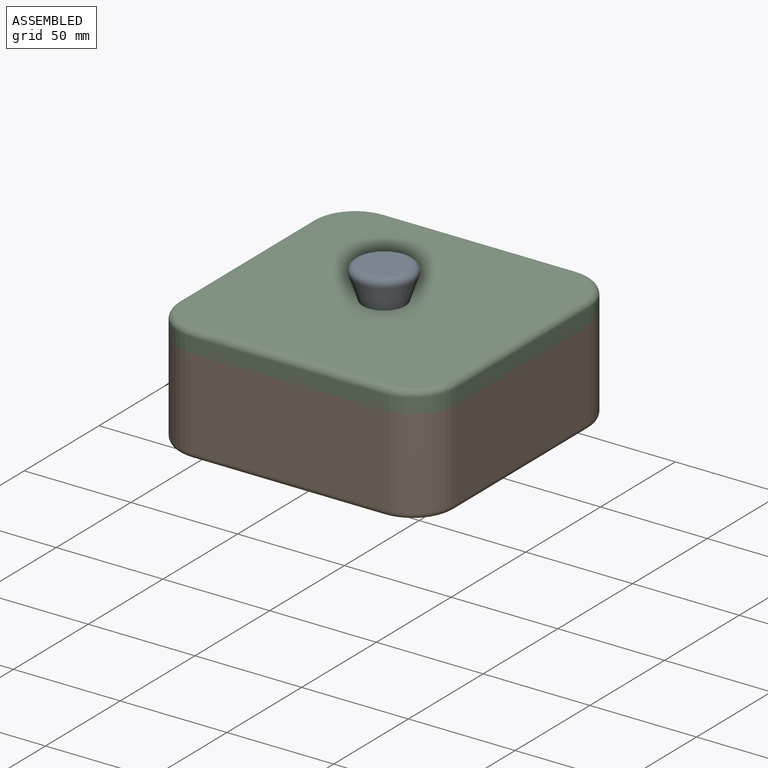
[diagram: assembled view]
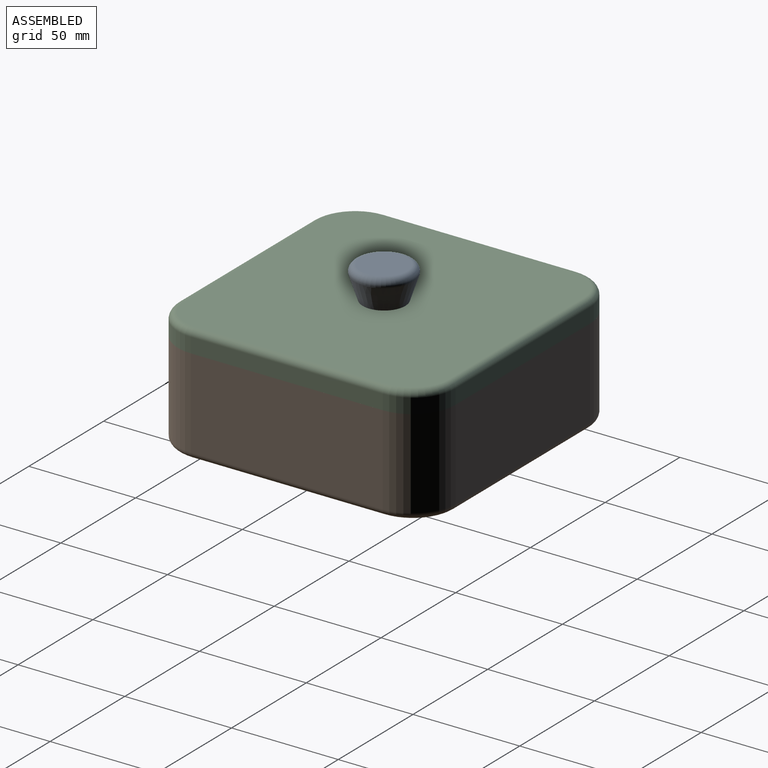
[diagram: assembled view, second angle]
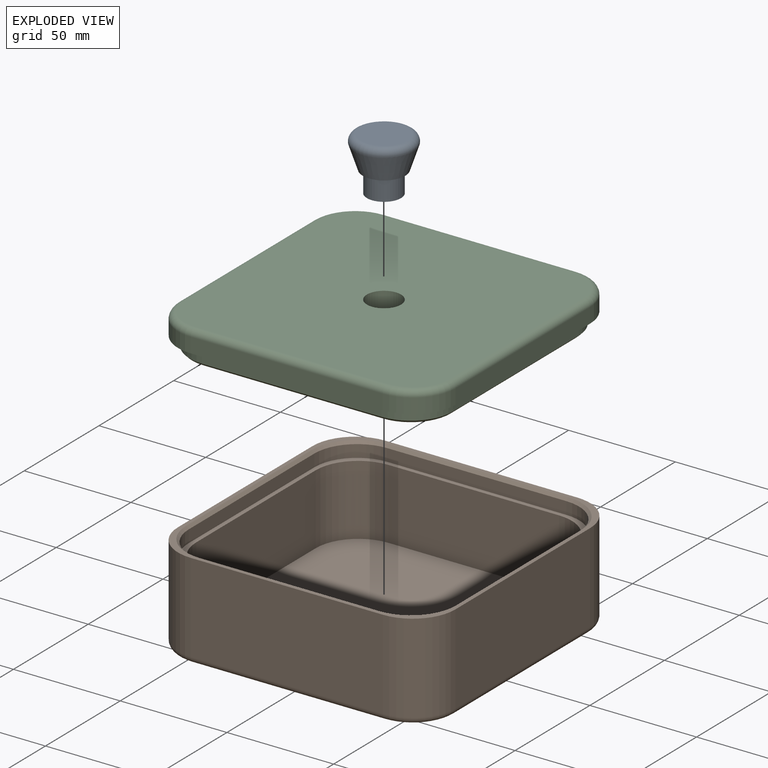
[diagram: exploded view]
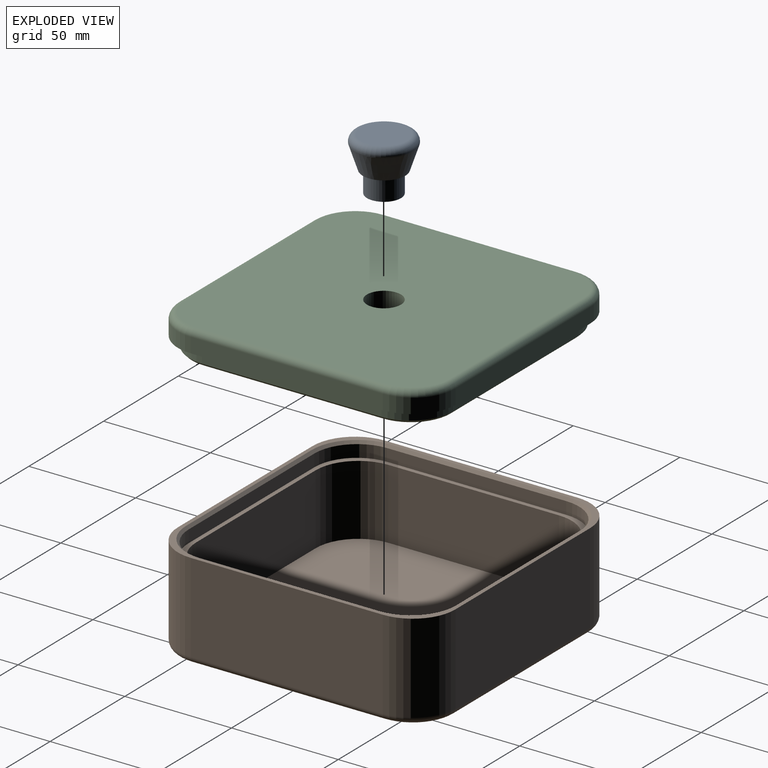
[diagram: exploded view, second angle]
ASSEMBLY  parts=3 mates=2
PART A: 6 faces, bbox 30x30x25 mm
  f0: plane 21.68x21.68mm, normal (0,0,1), area 369mm2, adj f5
  f1: cone r=10mm half-angle=18.4deg, axis (0,0,1), area 866.7mm2, adj f2,f5
  f2: plane 20x20mm, normal (0,0,-1), area 113.1mm2, adj f1,f3
  f3: cylinder r=8mm len=16mm, axis (0,0,1), area 502.7mm2, adj f2,f4
  f4: plane 16x16mm, normal (0,0,-1), area 201.1mm2, adj f3
  f5: torus R=10.84mm, axis (0,0,1), area 461.1mm2, adj f0,f1
PART B: 44 faces, bbox 133.3x133.3x45 mm
  f0: plane 130x130mm, normal (0,0,1), area 965.5mm2, adj f2,f3,f4,f5,f20,f21,f22,f23
  f1: plane 124x124mm, normal (0,0,-1), area 15127.9mm2, adj f36,f37,f38,f39,f40,f41,f42,f43
  f2: plane 90x42mm, normal (0,-1,0), area 3780mm2, adj f0,f20,f23,f42
  f3: plane 90x42mm, normal (1,0,0), area 3780mm2, adj f0,f20,f21,f41
  f4: plane 90x42mm, normal (0,1,0), area 3780mm2, adj f0,f21,f22,f37
  f5: plane 90x42mm, normal (-1,0,0), area 3780mm2, adj f0,f22,f23,f38
  f6: plane 84x5.8mm, normal (0,1,0), area 487.2mm2, adj f10,f16,f19,f32
  f7: plane 84x5.8mm, normal (-1,0,0), area 487.2mm2, adj f10,f16,f17,f35
  f8: plane 84x5.8mm, normal (0,-1,0), area 487.2mm2, adj f10,f17,f18,f31
  f9: plane 84x5.8mm, normal (1,0,0), area 487.2mm2, adj f10,f18,f19,f28
  f10: plane 124x124mm, normal (0,0,1), area 976mm2, adj f6,f7,f8,f9,f12,f13,f14,f15
  f11: plane 120x120mm, normal (0,0,1), area 14056.6mm2, adj f12,f13,f14,f15,f24,f25,f26,f27
  f12: plane 80x33mm, normal (0,1,0), area 2640mm2, adj f10,f11,f25,f26
  f13: plane 80x33mm, normal (1,0,0), area 2640mm2, adj f10,f11,f26,f27
  f14: plane 80x33mm, normal (0,-1,0), area 2640mm2, adj f10,f11,f24,f27
  f15: plane 80x33mm, normal (-1,0,0), area 2640mm2, adj f10,f11,f24,f25
  f16: cylinder r=20mm len=20mm, axis (0,0,-1), area 182.2mm2, adj f6,f7,f10,f34
  f17: cylinder r=20mm len=20mm, axis (0,0,1), area 182.2mm2, adj f7,f8,f10,f33
  f18: cylinder r=20mm len=20mm, axis (0,0,-1), area 182.2mm2, adj f8,f9,f10,f29
  f19: cylinder r=20mm len=20mm, axis (0,0,1), area 182.2mm2, adj f6,f9,f10,f30
  f20: cylinder r=20mm len=42mm, axis (0,0,-1), area 1319.5mm2, adj f0,f2,f3,f43
  f21: cylinder r=20mm len=42mm, axis (0,0,1), area 1319.5mm2, adj f0,f3,f4,f39
  f22: cylinder r=20mm len=42mm, axis (0,0,-1), area 1319.5mm2, adj f0,f4,f5,f36
  f23: cylinder r=20mm len=42mm, axis (0,0,1), area 1319.5mm2, adj f0,f2,f5,f40
  f24: cylinder r=20mm len=33mm, axis (0,0,-1), area 1036.7mm2, adj f10,f11,f14,f15
  f25: cylinder r=20mm len=33mm, axis (0,0,1), area 1036.7mm2, adj f10,f11,f12,f15
  f26: cylinder r=20mm len=33mm, axis (0,0,-1), area 1036.7mm2, adj f10,f11,f12,f13
  f27: cylinder r=20mm len=33mm, axis (0,0,1), area 1036.7mm2, adj f10,f11,f13,f14
  f28: plane 84x1.2mm, normal (0.71,0,0.71), area 142.6mm2, adj f0,f9,f29,f30
  f29: cone r=21.2mm half-angle=45deg, axis (0,0,1), area 54.9mm2, adj f0,f18,f28,f31
  f30: cone r=21.2mm half-angle=45deg, axis (0,0,1), area 54.9mm2, adj f0,f19,f28,f32
  f31: plane 84x1.2mm, normal (0,-0.71,0.71), area 142.6mm2, adj f0,f8,f29,f33
  f32: plane 84x1.2mm, normal (0,0.71,0.71), area 142.6mm2, adj f0,f6,f30,f34
  f33: cone r=21.2mm half-angle=45deg, axis (0,0,1), area 54.9mm2, adj f0,f17,f31,f35
  f34: cone r=21.2mm half-angle=45deg, axis (0,0,1), area 54.9mm2, adj f0,f16,f32,f35
  f35: plane 84x1.2mm, normal (-0.71,0,0.71), area 142.6mm2, adj f0,f7,f33,f34
  f36: torus R=17mm, axis (0,0,1), area 140mm2, adj f1,f22,f37,f38
  f37: cylinder r=3mm len=90mm, axis (-1,0,0), area 424.1mm2, adj f1,f4,f36,f39
  f38: cylinder r=3mm len=90mm, axis (0,-1,0), area 424.1mm2, adj f1,f5,f36,f40
  f39: torus R=17mm, axis (0,0,1), area 140mm2, adj f1,f21,f37,f41
  f40: torus R=17mm, axis (0,0,1), area 140mm2, adj f1,f23,f38,f42
  f41: cylinder r=3mm len=90mm, axis (0,1,0), area 424.1mm2, adj f1,f3,f39,f43
  f42: cylinder r=3mm len=90mm, axis (1,0,0), area 424.1mm2, adj f1,f2,f40,f43
  f43: torus R=17mm, axis (0,0,1), area 140mm2, adj f1,f20,f41,f42
PART C: 37 faces, bbox 133.3x133.3x16 mm
  f0: plane 90x7mm, normal (0,-1,0), area 630mm2, adj f5,f6,f9,f32
  f1: plane 90x7mm, normal (1,0,0), area 630mm2, adj f5,f6,f7,f33
  f2: plane 90x7mm, normal (0,1,0), area 630mm2, adj f5,f7,f8,f29
  f3: plane 90x7mm, normal (-1,0,0), area 630mm2, adj f5,f8,f9,f28
  f4: plane 124x124mm, normal (0,0,1), area 14926.9mm2, adj f27,f28,f29,f30,f31,f32,f33,f34
  f5: plane 130x130mm, normal (0,0,-1), area 1639.2mm2, adj f0,f1,f2,f3,f6,f7,f8,f9
  f6: cylinder r=20mm len=20mm, axis (0,0,1), area 219.9mm2, adj f0,f1,f5,f34
  f7: cylinder r=20mm len=20mm, axis (0,0,-1), area 219.9mm2, adj f1,f2,f5,f31
  f8: cylinder r=20mm len=20mm, axis (0,0,1), area 219.9mm2, adj f2,f3,f5,f27
  f9: cylinder r=20mm len=20mm, axis (0,0,-1), area 219.9mm2, adj f0,f3,f5,f30
  f10: cylinder r=19.75mm len=19.75mm, axis (0,0,-1), area 148.9mm2, adj f5,f11,f17,f24
  f11: plane 84x4.8mm, normal (0,-1,0), area 403.2mm2, adj f5,f10,f12,f26
  f12: cylinder r=19.75mm len=19.75mm, axis (0,0,1), area 148.9mm2, adj f5,f11,f13,f25
  f13: plane 84x4.8mm, normal (-1,0,0), area 403.2mm2, adj f5,f12,f14,f23
  f14: cylinder r=19.75mm len=19.75mm, axis (0,0,-1), area 148.9mm2, adj f5,f13,f15,f21
  f15: plane 84x4.8mm, normal (0,1,0), area 403.2mm2, adj f5,f14,f16,f19
  f16: cylinder r=19.75mm len=19.75mm, axis (0,0,1), area 148.9mm2, adj f5,f15,f17,f20
  f17: plane 84x4.8mm, normal (1,0,0), area 403.2mm2, adj f5,f10,f16,f22
  f18: plane 121.1x121.1mm, normal (0,0,-1), area 14369.8mm2, adj f19,f20,f21,f22,f23,f24,f25,f26
  f19: plane 84x1.2mm, normal (0,0.71,-0.71), area 142.6mm2, adj f15,f18,f20,f21
  f20: cone r=18.55mm half-angle=45deg, axis (0,0,1), area 51mm2, adj f16,f18,f19,f22
  f21: cone r=18.55mm half-angle=45deg, axis (0,0,1), area 51mm2, adj f14,f18,f19,f23
  f22: plane 84x1.2mm, normal (0.71,0,-0.71), area 142.6mm2, adj f17,f18,f20,f24
  f23: plane 84x1.2mm, normal (-0.71,0,-0.71), area 142.6mm2, adj f13,f18,f21,f25
  f24: cone r=18.55mm half-angle=45deg, axis (0,0,1), area 51mm2, adj f10,f18,f22,f26
  f25: cone r=18.55mm half-angle=45deg, axis (0,0,1), area 51mm2, adj f12,f18,f23,f26
  f26: plane 84x1.2mm, normal (0,-0.71,-0.71), area 142.6mm2, adj f11,f18,f24,f25
  f27: torus R=17mm, axis (0,0,1), area 140mm2, adj f4,f8,f28,f29
  f28: cylinder r=3mm len=90mm, axis (0,-1,0), area 424.1mm2, adj f3,f4,f27,f30
  f29: cylinder r=3mm len=90mm, axis (-1,0,0), area 424.1mm2, adj f2,f4,f27,f31
  f30: torus R=17mm, axis (0,0,1), area 140mm2, adj f4,f9,f28,f32
  f31: torus R=17mm, axis (0,0,1), area 140mm2, adj f4,f7,f29,f33
  f32: cylinder r=3mm len=90mm, axis (1,0,0), area 424.1mm2, adj f0,f4,f30,f34
  f33: cylinder r=3mm len=90mm, axis (0,1,0), area 424.1mm2, adj f1,f4,f31,f34
  f34: torus R=17mm, axis (0,0,1), area 140mm2, adj f4,f6,f32,f33
  f35: cylinder r=8mm len=16mm, axis (0,0,1), area 603.2mm2, adj f4,f36
  f36: plane 16x16mm, normal (0,0,1), area 201.1mm2, adj f35
PLACE A t=(1.73,2.64,67.47)mm
PLACE B t=(1.73,2.64,12.47)mm fixed
PLACE C t=(1.73,2.64,67.47)mm
MATE fastened C.f5 <-> B.f0  axis (0,0,-1) through (1.73,-62.36,57.47)mm
MATE fastened A.f1 <-> C.f35  axis (0,0,-1) through (1.73,2.64,67.47)mm
